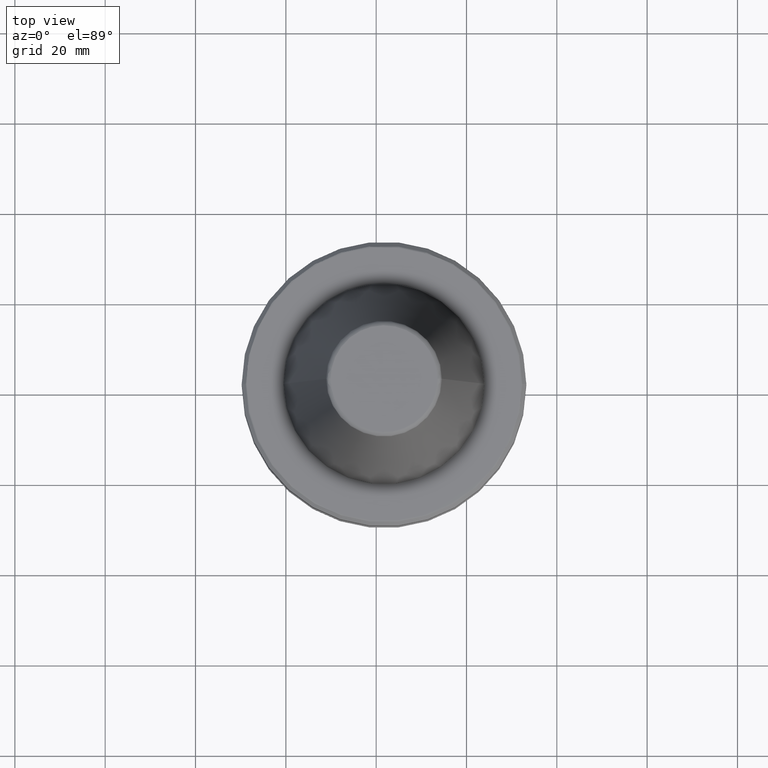
[diagram: clean part render]
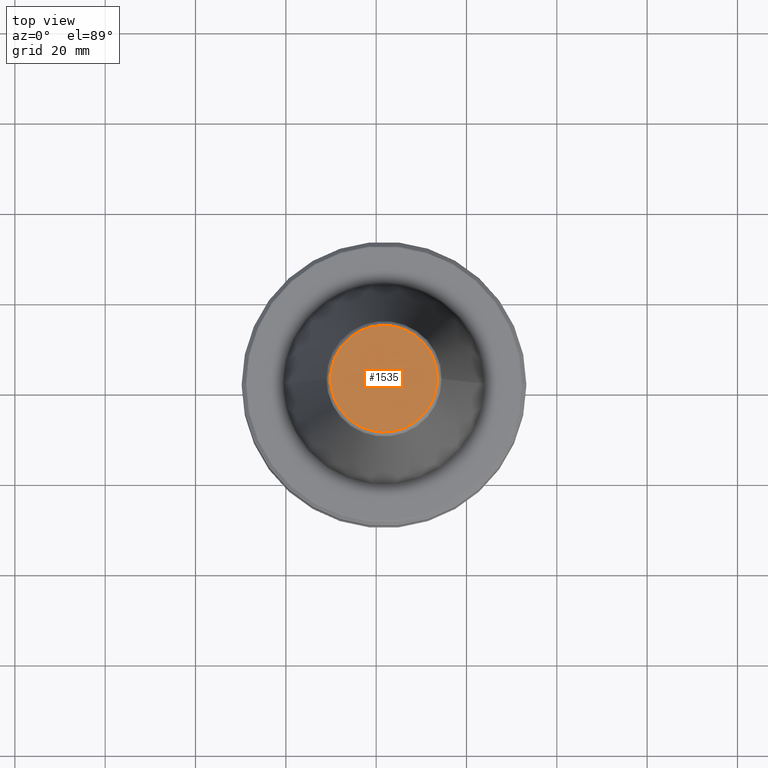
[diagram: same view with one face highlighted and labeled with its STEP entity id]
A machine part, top view. The second image highlights one B-rep face of the part: STEP entity #1535.
In plain terms, the highlighted planar face has unit normal (0, 0, 1).
Its self-contained STEP definition (entity closure, byte-faithful):
#50 =( BOUNDED_CURVE ( )  B_SPLINE_CURVE ( 3, ( #963, #1000, #983, #961 ),
 .UNSPECIFIED., .F., .T. ) 
 B_SPLINE_CURVE_WITH_KNOTS ( ( 4, 4 ),
 ( 0.0000000000000000000, 1.000000000000000000 ),
 .UNSPECIFIED. ) 
 CURVE ( )  GEOMETRIC_REPRESENTATION_ITEM ( )  RATIONAL_B_SPLINE_CURVE ( ( 0.9606698265744703100, 0.3202232755248231000, 0.3202232755248231000, 0.9606698265744703100 ) ) 
 REPRESENTATION_ITEM ( '' )  );
#292 = CARTESIAN_POINT ( 'NONE',  ( 73.55608052172046000, 81.23534176582239800, 132.4679382820441200 ) ) ;
#299 = CARTESIAN_POINT ( 'NONE',  ( 73.55608052369032600, 80.70971929353277100, 132.4679382820441400 ) ) ;
#302 = CARTESIAN_POINT ( 'NONE',  ( 73.52120540063000900, 80.18659244762832800, 132.4679382820441400 ) ) ;
#311 = CARTESIAN_POINT ( 'NONE',  ( 73.44647287776138000, 79.62910052984655400, 132.4679382820441200 ) ) ;
#320 = CARTESIAN_POINT ( 'NONE',  ( 73.44136249385495300, 79.59226795397829300, 132.4679382820441200 ) ) ;
#322 = CARTESIAN_POINT ( 'NONE',  ( 73.43356881083701600, 79.53704721257015800, 132.4679382820441400 ) ) ;
#329 = CARTESIAN_POINT ( 'NONE',  ( 73.41448680035337300, 79.40839567271108000, 132.4679382820441200 ) ) ;
#335 = CARTESIAN_POINT ( 'NONE',  ( 73.37273577895257400, 79.15188002003280600, 132.4679382820441400 ) ) ;
#339 = CARTESIAN_POINT ( 'NONE',  ( 73.27488573441652900, 78.64199842283545600, 132.4679382820441400 ) ) ;
#342 = CARTESIAN_POINT ( 'NONE',  ( 73.16641769326936600, 78.21035655351059300, 132.4679382820441200 ) ) ;
#344 = CARTESIAN_POINT ( 'NONE',  ( 73.08057248504655900, 77.91607753904635600, 132.4679382820441200 ) ) ;
#347 = CARTESIAN_POINT ( 'NONE',  ( 73.07728768841678900, 77.90486658019219100, 132.4679382820441200 ) ) ;
#356 = CARTESIAN_POINT ( 'NONE',  ( 73.07136274922598300, 77.88475332249571200, 132.4679382820440900 ) ) ;
#359 = CARTESIAN_POINT ( 'NONE',  ( 73.04133740291806000, 77.78434458686840000, 132.4679382820441200 ) ) ;
#361 = CARTESIAN_POINT ( 'NONE',  ( 72.99805343988720100, 77.64426331201619300, 132.4679382820441200 ) ) ;
#365 = CARTESIAN_POINT ( 'NONE',  ( 72.90714298095684900, 77.36580843196745100, 132.4679382820441200 ) ) ;
#368 = CARTESIAN_POINT ( 'NONE',  ( 72.70795193162152300, 76.81572935049285900, 132.4679382820441400 ) ) ;
#372 = CARTESIAN_POINT ( 'NONE',  ( 72.50743937823475000, 76.35594272972515700, 132.4679382820440900 ) ) ;
#373 = CARTESIAN_POINT ( 'NONE',  ( 72.35593903733699500, 76.04520638972245200, 132.4679382820441200 ) ) ;
#377 = CARTESIAN_POINT ( 'NONE',  ( 72.35023039967045100, 76.03353708038788700, 132.4679382820441200 ) ) ;
#381 = CARTESIAN_POINT ( 'NONE',  ( 72.33988649580712100, 76.01247891326957500, 132.4679382820441400 ) ) ;
#387 = CARTESIAN_POINT ( 'NONE',  ( 72.32432629323649600, 75.98091905753574300, 132.4679382820441200 ) ) ;
#390 = CARTESIAN_POINT ( 'NONE',  ( 72.28770872647567100, 75.90747115876207800, 132.4679382820441200 ) ) ;
#398 = CARTESIAN_POINT ( 'NONE',  ( 72.05931135788843300, 75.47215317506868400, 132.4679382820441200 ) ) ;
#400 = CARTESIAN_POINT ( 'NONE',  ( 71.73160295171264500, 74.90604762067387400, 132.4679382820441200 ) ) ;
#409 = CARTESIAN_POINT ( 'NONE',  ( 71.41665170845422500, 74.44185360503212200, 132.4679382820440900 ) ) ;
#410 = CARTESIAN_POINT ( 'NONE',  ( 71.18451266369440600, 74.13236323943110100, 132.4679382820441200 ) ) ;
#415 = CARTESIAN_POINT ( 'NONE',  ( 71.17596810875976100, 74.12100667301294300, 132.4679382820441200 ) ) ;
#418 = CARTESIAN_POINT ( 'NONE',  ( 71.16034259679979400, 74.10031508443540800, 132.4679382820441200 ) ) ;
#419 = CARTESIAN_POINT ( 'NONE',  ( 71.13685788834237700, 74.06932117533708000, 132.4679382820441200 ) ) ;
#426 = CARTESIAN_POINT ( 'NONE',  ( 71.08173515165297800, 73.99730637048314500, 132.4679382820441200 ) ) ;
#429 = FACE_OUTER_BOUND ( 'NONE', #1981, .T. ) ;
#430 = CARTESIAN_POINT ( 'NONE',  ( 70.97018934378559200, 73.85449402627756400, 132.4679382820441200 ) ) ;
#431 = CARTESIAN_POINT ( 'NONE',  ( 70.74189639009675500, 73.57373839987545200, 132.4679382820441200 ) ) ;
#437 = CARTESIAN_POINT ( 'NONE',  ( 69.81964630562247000, 72.60048981622549000, 132.4679382820441200 ) ) ;
#443 = CARTESIAN_POINT ( 'NONE',  ( 69.48769554338805700, 72.31081335102290100, 132.4679382820441400 ) ) ;
#446 = CARTESIAN_POINT ( 'NONE',  ( 69.46560339488358700, 72.29166205133556400, 132.4679382820441200 ) ) ;
#448 = CARTESIAN_POINT ( 'NONE',  ( 69.42381056646848900, 72.25570114288127900, 132.4679382820441200 ) ) ;
#449 = CARTESIAN_POINT ( 'NONE',  ( 69.36094715936079100, 72.20198996350370600, 132.4679382820441400 ) ) ;
#454 = CARTESIAN_POINT ( 'NONE',  ( 69.21304672471393400, 72.07827516141574600, 132.4679382820441400 ) ) ;
#458 = CARTESIAN_POINT ( 'NONE',  ( 68.91236924983815000, 71.83729068974604100, 132.4679382820441200 ) ) ;
#462 = CARTESIAN_POINT ( 'NONE',  ( 68.64628580466109000, 71.64178136975394300, 132.4679382820441400 ) ) ;
#464 = CARTESIAN_POINT ( 'NONE',  ( 68.41990521407821300, 71.48499515786160400, 132.4679382820441700 ) ) ;
#465 = CARTESIAN_POINT ( 'NONE',  ( 68.37099482799862900, 71.45162228834810500, 132.4679382820441700 ) ) ;
#469 = CARTESIAN_POINT ( 'NONE',  ( 68.13331647367560600, 71.29352952281178100, 132.4679382820441200 ) ) ;
#472 = CARTESIAN_POINT ( 'NONE',  ( 67.79555269826930400, 71.08066001656625600, 132.4679382820441200 ) ) ;
#473 = CARTESIAN_POINT ( 'NONE',  ( 67.49845656906612100, 70.91099763130500800, 132.4679382820440900 ) ) ;
#476 = CARTESIAN_POINT ( 'NONE',  ( 67.24666294933456400, 70.77672186109883500, 132.4679382820441200 ) ) ;
#482 = CARTESIAN_POINT ( 'NONE',  ( 67.19296564234129200, 70.74858165136572600, 132.4679382820441400 ) ) ;
#486 = CARTESIAN_POINT ( 'NONE',  ( 67.08837615847713200, 70.69478781190117900, 132.4679382820441200 ) ) ;
#487 = CARTESIAN_POINT ( 'NONE',  ( 66.93095847975621400, 70.61529857701410200, 132.4679382820441200 ) ) ;
#492 = CARTESIAN_POINT ( 'NONE',  ( 66.55991639226877500, 70.43823436577952200, 132.4679382820441400 ) ) ;
#494 = CARTESIAN_POINT ( 'NONE',  ( 66.23547888218446600, 70.30088333358146700, 132.4679382820441400 ) ) ;
#497 = CARTESIAN_POINT ( 'NONE',  ( 65.96155793761693100, 70.19443430214830900, 132.4679382820440900 ) ) ;
#503 = CARTESIAN_POINT ( 'NONE',  ( 65.79118168174565500, 70.13067677256182700, 132.4679382820441400 ) ) ;
#506 = CARTESIAN_POINT ( 'NONE',  ( 65.62160581403232100, 70.06919249848130000, 132.4679382820441400 ) ) ;
#510 = CARTESIAN_POINT ( 'NONE',  ( 65.22310665286875100, 69.93493410359086200, 132.4679382820441200 ) ) ;
#512 = CARTESIAN_POINT ( 'NONE',  ( 64.87669799501587400, 69.83563532733752800, 132.4679382820441200 ) ) ;
#514 = CARTESIAN_POINT ( 'NONE',  ( 64.52706403830691800, 69.74685644970978200, 132.4679382820441400 ) ) ;
#517 = CARTESIAN_POINT ( 'NONE',  ( 64.40622484157145800, 69.71811876082784900, 132.4679382820440900 ) ) ;
#521 = CARTESIAN_POINT ( 'NONE',  ( 64.16785465152391100, 69.66537487819906000, 132.4679382820441200 ) ) ;
#525 = CARTESIAN_POINT ( 'NONE',  ( 63.80931302537677400, 69.59184581971821600, 132.4679382820441400 ) ) ;
#528 = CARTESIAN_POINT ( 'NONE',  ( 63.44781237600218300, 69.53507705762437800, 132.4679382820441400 ) ) ;
#536 = CARTESIAN_POINT ( 'NONE',  ( 63.08433904447598200, 69.48948182645526100, 132.4679382820441200 ) ) ;
#543 = CARTESIAN_POINT ( 'NONE',  ( 62.71586867411301100, 69.45291157483039500, 132.4679382820440600 ) ) ;
#547 = CARTESIAN_POINT ( 'NONE',  ( 62.34813869960689900, 69.42415565975284200, 132.4679382820440900 ) ) ;
#552 = CARTESIAN_POINT ( 'NONE',  ( 61.97953638706827900, 69.41266359856105300, 132.4679382820441200 ) ) ;
#555 = CARTESIAN_POINT ( 'NONE',  ( 61.24116864461435500, 69.41269794802515500, 132.4679382820441200 ) ) ;
#562 = CARTESIAN_POINT ( 'NONE',  ( 60.74974240508542100, 69.44336637822793500, 132.4679382820441200 ) ) ;
#574 = CARTESIAN_POINT ( 'NONE',  ( 60.01712498373110800, 69.53533716615349600, 132.4679382820441200 ) ) ;
#577 = CARTESIAN_POINT ( 'NONE',  ( 59.77747858579680700, 69.57302443138249300, 132.4679382820441200 ) ) ;
#593 = CARTESIAN_POINT ( 'NONE',  ( 59.29810796283289400, 69.66361415540718800, 132.4679382820441200 ) ) ;
#597 = CARTESIAN_POINT ( 'NONE',  ( 59.05991651204705300, 69.71632419391525600, 132.4679382820441200 ) ) ;
#601 = CARTESIAN_POINT ( 'NONE',  ( 58.70487012691253200, 69.80651201642089600, 132.4679382820440900 ) ) ;
#604 = CARTESIAN_POINT ( 'NONE',  ( 58.35925894408942600, 69.90373824653067900, 132.4679382820441200 ) ) ;
#616 = CARTESIAN_POINT ( 'NONE',  ( 58.01433499440018000, 70.00833799534774500, 132.4679382820441200 ) ) ;
#626 = CARTESIAN_POINT ( 'NONE',  ( 57.67463281678822500, 70.12859452235053900, 132.4679382820441400 ) ) ;
#630 = CARTESIAN_POINT ( 'NONE',  ( 57.39444865326566300, 70.23750650495605900, 132.4679382820441400 ) ) ;
#639 = CARTESIAN_POINT ( 'NONE',  ( 57.34094575558535200, 70.25877284127696500, 132.4679382820441200 ) ) ;
#641 = CARTESIAN_POINT ( 'NONE',  ( 57.23196931216499900, 70.30300937599568600, 132.4679382820441200 ) ) ;
#645 = CARTESIAN_POINT ( 'NONE',  ( 57.06906793399888000, 70.37055197995047700, 132.4679382820441700 ) ) ;
#652 = CARTESIAN_POINT ( 'NONE',  ( 56.69290772702920100, 70.53646600231493800, 132.4679382820441200 ) ) ;
#653 = CARTESIAN_POINT ( 'NONE',  ( 56.37724413605727800, 70.69293164400467300, 132.4679382820441700 ) ) ;
#657 = CARTESIAN_POINT ( 'NONE',  ( 56.11794639001032400, 70.83123835792390800, 132.4679382820440900 ) ) ;
#663 = CARTESIAN_POINT ( 'NONE',  ( 73.44927545931813000, 79.64969150249916700, 132.4679382820441200 ) ) ;
#668 = CARTESIAN_POINT ( 'NONE',  ( 73.06243656782487500, 77.85459868300148400, 132.4679382820441400 ) ) ;
#678 = CARTESIAN_POINT ( 'NONE',  ( 72.21323188323657400, 75.76134241963596600, 132.4679382820441400 ) ) ;
#688 = CARTESIAN_POINT ( 'NONE',  ( 70.26450513090267700, 73.03170339510748500, 132.4679382820441400 ) ) ;
#690 = CARTESIAN_POINT ( 'NONE',  ( 68.27617629699317100, 71.38795860908287200, 132.4679382820441200 ) ) ;
#695 = CARTESIAN_POINT ( 'NONE',  ( 65.90396348531656700, 70.17254294683424100, 132.4679382820440900 ) ) ;
#696 = CARTESIAN_POINT ( 'NONE',  ( 62.96082813755428700, 69.47591859685672900, 132.4679382820441200 ) ) ;
#699 = CARTESIAN_POINT ( 'NONE',  ( 58.59036863767718700, 69.83748436469387900, 132.4679382820441400 ) ) ;
#708 = CARTESIAN_POINT ( 'NONE',  ( 55.96917957266796200, 70.91292473546872100, 132.4679382820441200 ) ) ;
#715 = CARTESIAN_POINT ( 'NONE',  ( 55.81986345415586500, 70.99677267127950100, 132.4679382820441200 ) ) ;
#726 = CARTESIAN_POINT ( 'NONE',  ( 55.47607380323466200, 71.19976643709540600, 132.4679382820441400 ) ) ;
#738 = CARTESIAN_POINT ( 'NONE',  ( 55.18930774634271300, 71.38635866309310500, 132.4679382820440900 ) ) ;
#743 = CARTESIAN_POINT ( 'NONE',  ( 54.95473091379657400, 71.54885083452677500, 132.4679382820440600 ) ) ;
#745 = CARTESIAN_POINT ( 'NONE',  ( 54.91119931341390300, 71.57947238279616900, 132.4679382820441200 ) ) ;
#746 = CARTESIAN_POINT ( 'NONE',  ( 54.82147439445672900, 71.64349338122197300, 132.4679382820441400 ) ) ;
#753 = CARTESIAN_POINT ( 'NONE',  ( 54.68760906395569100, 71.74042589473029400, 132.4679382820441200 ) ) ;
#756 = CARTESIAN_POINT ( 'NONE',  ( 54.38031096166311300, 71.97290887067083500, 132.4679382820441400 ) ) ;
#762 = CARTESIAN_POINT ( 'NONE',  ( 54.12557716348628400, 72.18299218334156800, 132.4679382820441200 ) ) ;
#763 = CARTESIAN_POINT ( 'NONE',  ( 53.92058510769789600, 72.36202232314383300, 132.4679382820441700 ) ) ;
#766 = CARTESIAN_POINT ( 'NONE',  ( 53.88175182072272000, 72.39636389203317900, 132.4679382820441200 ) ) ;
#768 = CARTESIAN_POINT ( 'NONE',  ( 53.82368904927396600, 72.44804863420634400, 132.4679382820441200 ) ) ;
#782 = CARTESIAN_POINT ( 'NONE',  ( 53.68951936232468100, 72.56985308781766300, 132.4679382820441200 ) ) ;
#784 = CARTESIAN_POINT ( 'NONE',  ( 53.42642044081751600, 72.81828888253636500, 132.4679382820441200 ) ) ;
#790 = CARTESIAN_POINT ( 'NONE',  ( 52.92118440736877700, 73.33446802195760500, 132.4679382820441200 ) ) ;
#797 = CARTESIAN_POINT ( 'NONE',  ( 52.52405948081082000, 73.81000594143402800, 132.4679382820441200 ) ) ;
#801 = ORIENTED_EDGE ( 'NONE', *, *, #1244, .T. ) ;
#802 = CARTESIAN_POINT ( 'NONE',  ( 52.26750608703230200, 74.15210847891854900, 132.4679382820441200 ) ) ;
#806 = CARTESIAN_POINT ( 'NONE',  ( 52.26121512911281300, 74.16052600771682500, 132.4679382820441200 ) ) ;
#815 = CARTESIAN_POINT ( 'NONE',  ( 52.24719443378391800, 74.17933724630569300, 132.4679382820441200 ) ) ;
#818 = CARTESIAN_POINT ( 'NONE',  ( 52.17755190499104900, 74.27367209029853300, 132.4679382820441200 ) ) ;
#849 = CARTESIAN_POINT ( 'NONE',  ( 51.89435848294929300, 74.67550359074715500, 132.4679382820441200 ) ) ;
#854 = CARTESIAN_POINT ( 'NONE',  ( 51.54008229328042700, 75.22537327447783200, 132.4679382820441400 ) ) ;
#865 = CARTESIAN_POINT ( 'NONE',  ( 51.27067582172446000, 75.71740021125809500, 132.4679382820441400 ) ) ;
#885 = CARTESIAN_POINT ( 'NONE',  ( 51.10116083805551300, 76.06516084342456500, 132.4679382820441200 ) ) ;
#892 = CARTESIAN_POINT ( 'NONE',  ( 49.91074709078014800, 81.23534176582239800, 132.4679382820441200 ) ) ;
#898 = CARTESIAN_POINT ( 'NONE',  ( 51.09712113538267200, 76.07347987338020800, 132.4679382820441200 ) ) ;
#903 = CARTESIAN_POINT ( 'NONE',  ( 51.08798356730056200, 76.09235188735026200, 132.4679382820441200 ) ) ;
#915 = CARTESIAN_POINT ( 'NONE',  ( 51.07431616745496700, 76.12067469134503000, 132.4679382820441200 ) ) ;
#920 = CARTESIAN_POINT ( 'NONE',  ( 51.04269823375875600, 76.18686471527706800, 132.4679382820441200 ) ) ;
#925 = CARTESIAN_POINT ( 'NONE',  ( 50.86062527799760600, 76.58690233464217600, 132.4679382820441200 ) ) ;
#942 = CARTESIAN_POINT ( 'NONE',  ( 50.63822039409261300, 77.12801242919030600, 132.4679382820440900 ) ) ;
#950 = CARTESIAN_POINT ( 'NONE',  ( 50.47750298568242800, 77.60317445611767100, 132.4679382820441200 ) ) ;
#953 = CARTESIAN_POINT ( 'NONE',  ( 50.38072096912745900, 77.93505197958987200, 132.4679382820441200 ) ) ;
#960 = CARTESIAN_POINT ( 'NONE',  ( 50.37845731331705700, 77.94285324234142800, 132.4679382820440900 ) ) ;
#961 = CARTESIAN_POINT ( 'NONE',  ( 73.55608052172046000, 81.23534176582239800, 132.4679382820441200 ) ) ;
#963 = CARTESIAN_POINT ( 'NONE',  ( 49.91074709078014800, 81.23534176582239800, 132.4679382820441200 ) ) ;
#964 = CARTESIAN_POINT ( 'NONE',  ( 50.37329299937787400, 77.96071794084419100, 132.4679382820441400 ) ) ;
#970 = CARTESIAN_POINT ( 'NONE',  ( 50.36557865872072200, 77.98752152969882400, 132.4679382820441200 ) ) ;
#976 = CARTESIAN_POINT ( 'NONE',  ( 50.34780344228254000, 78.05010902473013300, 132.4679382820440900 ) ) ;
#983 = CARTESIAN_POINT ( 'NONE',  ( 73.55608052369027000, 104.8806752007023700, 132.4679382820441200 ) ) ;
#986 = CARTESIAN_POINT ( 'NONE',  ( 50.31315265645304900, 78.17546716560752900, 132.4679382820441200 ) ) ;
#990 = CARTESIAN_POINT ( 'NONE',  ( 50.24744967298163100, 78.42691605062172800, 132.4679382820441200 ) ) ;
#998 = CARTESIAN_POINT ( 'NONE',  ( 50.05481842276736200, 79.37133481295197200, 132.4679382820441200 ) ) ;
#1000 = CARTESIAN_POINT ( 'NONE',  ( 49.91074708881029700, 104.8806752007023700, 132.4679382820441200 ) ) ;
#1003 = CARTESIAN_POINT ( 'NONE',  ( 50.01290708519269400, 79.68437537905647600, 132.4679382820441400 ) ) ;
#1009 = CARTESIAN_POINT ( 'NONE',  ( 50.01104712534602500, 79.69852411646684200, 132.4679382820441400 ) ) ;
#1029 = EDGE_CURVE ( 'NONE', #2225, #1164, #50, .T. ) ;
#1058 = CARTESIAN_POINT ( 'NONE',  ( 50.00682396591293600, 79.73109331622981700, 132.4679382820441200 ) ) ;
#1066 = CARTESIAN_POINT ( 'NONE',  ( 50.00059139997540600, 79.77995342727965100, 132.4679382820441200 ) ) ;
#1090 = CARTESIAN_POINT ( 'NONE',  ( 49.98676395860581300, 79.89400453289970000, 132.4679382820441700 ) ) ;
#1104 = CARTESIAN_POINT ( 'NONE',  ( 49.96196992580512100, 80.12228346348804600, 132.4679382820441400 ) ) ;
#1117 = CARTESIAN_POINT ( 'NONE',  ( 49.92382525995792300, 80.57954820205861800, 132.4679382820441400 ) ) ;
#1119 = DIRECTION ( 'NONE',  ( 1.000000000000000000, 0.0000000000000000000, 0.0000000000000000000 ) ) ;
#1131 = CARTESIAN_POINT ( 'NONE',  ( 49.91074708881030400, 80.97270119636549200, 132.4679382820441200 ) ) ;
#1134 = ORIENTED_EDGE ( 'NONE', *, *, #1029, .F. ) ;
#1164 = VERTEX_POINT ( 'NONE', #1609 ) ;
#1244 = EDGE_CURVE ( 'NONE', #2225, #1164, #1351, .T. ) ;
#1351 = B_SPLINE_CURVE_WITH_KNOTS ( 'NONE', 3,
 ( #1600, #1131, #1117, #1104, #1090, #1066, #1058, #1009, #1003, #998, #1598, #990, #986, #976, #970, #964, #960, #953, #950, #942, #925, #1594, #920, #915, #903, #898, #885, #865, #854, #849, #2632, #818, #1584, #815, #806, #802, #797, #790, #784, #782, #768, #766, #763, #1580, #762, #756, #753, #746, #745, #743, #738, #726, #715, #708, #1575, #657, #653, #652, #645, #641, #639, #630, #626, #616, #604, #699, #601, #597, #593, #577, #574, #562, #555, #552, #547, #543, #696, #536, #528, #525, #521, #517, #514, #512, #510, #506, #503, #695, #497, #494, #492, #487, #486, #482, #476, #473, #472, #469, #690, #465, #464, #462, #458, #454, #449, #448, #446, #443, #437, #688, #431, #430, #426, #419, #418, #415, #410, #409, #400, #398, #678, #390, #387, #381, #377, #373, #372, #368, #365, #361, #359, #668, #356, #347, #344, #342, #339, #335, #329, #322, #320, #311, #663, #302, #299, #292 ),
 .UNSPECIFIED., .F., .F.,
 ( 4, 1, 1, 1, 1, 2, 2, 1, 1, 1, 1, 1, 2, 2, 1, 1, 1, 1, 1, 2, 2, 1, 1, 1, 1, 1, 2, 2, 1, 1, 1, 1, 2, 2, 1, 1, 2, 2, 1, 1, 2, 2, 1, 1, 2, 2, 1, 2, 2, 2, 2, 2, 1, 2, 2, 1, 2, 2, 1, 1, 2, 2, 1, 1, 2, 2, 1, 1, 2, 2, 1, 1, 1, 2, 2, 1, 1, 1, 1, 1, 2, 2, 1, 1, 1, 1, 1, 2, 2, 1, 1, 1, 1, 1, 2, 2, 1, 1, 1, 1, 2, 2, 4 ),
 ( 0.0000000000000000000, 0.03125000000002606200, 0.04687500000003991900, 0.05468750000004684400, 0.05859375000005031400, 0.06054687500005209000, 0.06250000000005387400, 0.09375000000008712500, 0.1093750000001029600, 0.1171875000001108000, 0.1210937500001148000, 0.1230468750001168100, 0.1240234375001171000, 0.1250000000001174100, 0.1562500000001473800, 0.1718750000001628700, 0.1796875000001698600, 0.1835937500001735300, 0.1855468750001753300, 0.1865234375001764100, 0.1875000000001774700, 0.2187500000001748600, 0.2343750000001735300, 0.2421875000001730300, 0.2460937500001726400, 0.2480468750001725800, 0.2490234375001725800, 0.2500000000001725300, 0.2812500000001580400, 0.2968750000001508200, 0.3046875000001468800, 0.3085937500001448300, 0.3105468750001438800, 0.3125000000001428900, 0.3281250000001401700, 0.3359375000001386700, 0.3398437500001384400, 0.3437500000001381700, 0.3593750000001388300, 0.3671875000001394400, 0.3710937500001394400, 0.3750000000001395000, 0.3906250000001384400, 0.3984375000001381100, 0.4023437500001377800, 0.4062500000001373900, 0.4218750000001362800, 0.4296875000001359500, 0.4375000000001355600, 0.4531250000001342300, 0.4687500000001328400, 0.5000000000001302300, 0.5156250000001289000, 0.5234375000001280100, 0.5312500000001271200, 0.5468750000001262300, 0.5546875000001259000, 0.5625000000001254600, 0.5781250000001250100, 0.5859375000001247900, 0.5898437500001246800, 0.5937500000001245700, 0.6093750000001253400, 0.6171875000001257900, 0.6210937500001259000, 0.6250000000001259000, 0.6406250000001257900, 0.6484375000001251200, 0.6523437500001244600, 0.6562500000001239000, 0.6718750000001192400, 0.6796875000001172400, 0.6835937500001158000, 0.6855468750001154600, 0.6875000000001150200, 0.7187500000001113600, 0.7343750000001095800, 0.7421875000001085800, 0.7460937500001074700, 0.7480468750001072500, 0.7490234375001076900, 0.7500000000001080200, 0.7812500000001078000, 0.7968750000001075800, 0.8046875000001075800, 0.8085937500001074700, 0.8105468750001072500, 0.8115234375001078000, 0.8125000000001083600, 0.8437500000000928100, 0.8593750000000844900, 0.8671875000000796000, 0.8710937500000779400, 0.8730468750000768300, 0.8740234375000761600, 0.8750000000000753800, 0.9062500000000538500, 0.9218750000000438500, 0.9296875000000383000, 0.9335937500000346400, 0.9355468750000336400, 0.9375000000000325300, 1.000000000000000000 ),
 .UNSPECIFIED. ) ;
#1535 = ADVANCED_FACE ( 'NONE', ( #429 ), #1602, .T. ) ;
#1575 = CARTESIAN_POINT ( 'NONE',  ( 56.06916313982904400, 70.85772597657171400, 132.4679382820441200 ) ) ;
#1580 = CARTESIAN_POINT ( 'NONE',  ( 53.93885910246211800, 72.34596076306263500, 132.4679382820441400 ) ) ;
#1584 = CARTESIAN_POINT ( 'NONE',  ( 52.22620799864716900, 74.20758107041953600, 132.4679382820441400 ) ) ;
#1594 = CARTESIAN_POINT ( 'NONE',  ( 50.98055303014005100, 76.31965868825147900, 132.4679382820441200 ) ) ;
#1598 = CARTESIAN_POINT ( 'NONE',  ( 50.13043805878903900, 78.93274423368784200, 132.4679382820441200 ) ) ;
#1600 = CARTESIAN_POINT ( 'NONE',  ( 49.91074709078014800, 81.23534176582239800, 132.4679382820441200 ) ) ;
#1602 = PLANE ( 'NONE',  #2356 ) ;
#1609 = CARTESIAN_POINT ( 'NONE',  ( 73.55608052172046000, 81.23534176582239800, 132.4679382820441200 ) ) ;
#1898 = DIRECTION ( 'NONE',  ( 0.0000000000000000000, 0.0000000000000000000, 1.000000000000000000 ) ) ;
#1981 = EDGE_LOOP ( 'NONE', ( #1134, #801 ) ) ;
#2225 = VERTEX_POINT ( 'NONE', #892 ) ;
#2356 = AXIS2_PLACEMENT_3D ( 'NONE', #2639, #1898, #1119 ) ;
#2632 = CARTESIAN_POINT ( 'NONE',  ( 52.08148873766379000, 74.40660918451004600, 132.4679382820441400 ) ) ;
#2639 = CARTESIAN_POINT ( 'NONE',  ( 49.76887508725030100, 69.27076932382239200, 132.4679382820441200 ) ) ;